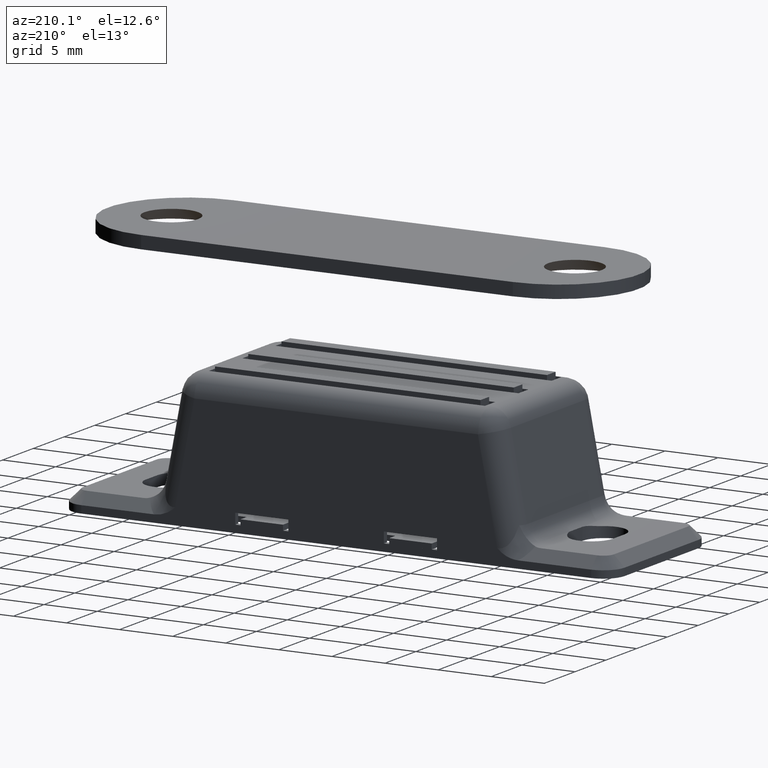
[diagram: clean part render]
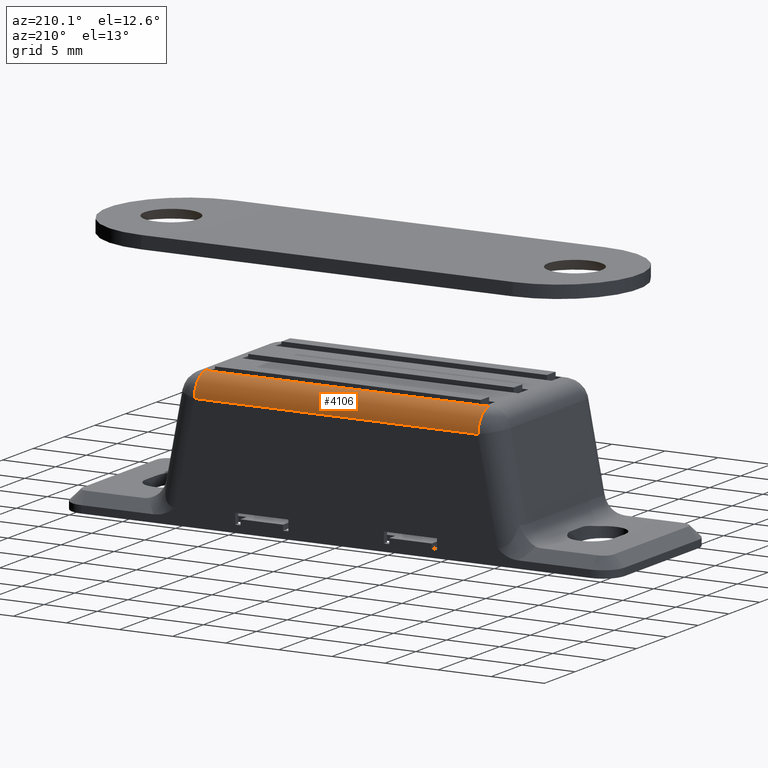
[diagram: same view with one face highlighted and labeled with its STEP entity id]
A machine part, auxiliary view. The second image highlights one B-rep face of the part: STEP entity #4106.
In plain terms, the highlighted cylindrical surface (edge-blend (fillet) strip) has radius 2 mm, axis along (1, 0, 0).
Its self-contained STEP definition (entity closure, byte-faithful):
#184=CYLINDRICAL_SURFACE('',#4404,2.);
#209=CIRCLE('',#4275,2.);
#211=CIRCLE('',#4279,2.);
#259=CIRCLE('',#4402,2.);
#261=CIRCLE('',#4405,2.);
#396=FACE_OUTER_BOUND('',#633,.T.);
#633=EDGE_LOOP('',(#3114,#3115,#3116,#3117,#3118,#3119,#3120,#3121));
#845=LINE('',#5864,#1285);
#880=LINE('',#5953,#1320);
#885=LINE('',#5961,#1325);
#957=LINE('',#6578,#1397);
#1285=VECTOR('',#4705,26.);
#1320=VECTOR('',#4784,0.351327228364999);
#1325=VECTOR('',#4789,0.351327228364999);
#1397=VECTOR('',#5073,26.70265445673);
#1706=VERTEX_POINT('',#5853);
#1707=VERTEX_POINT('',#5854);
#1710=VERTEX_POINT('',#5863);
#1712=VERTEX_POINT('',#5869);
#1742=VERTEX_POINT('',#5952);
#1745=VERTEX_POINT('',#5959);
#1833=VERTEX_POINT('',#6572);
#1834=VERTEX_POINT('',#6576);
#2110=EDGE_CURVE('',#1706,#1707,#209,.T.);
#2115=EDGE_CURVE('',#1707,#1710,#845,.T.);
#2118=EDGE_CURVE('',#1710,#1712,#211,.T.);
#2160=EDGE_CURVE('',#1742,#1706,#880,.T.);
#2165=EDGE_CURVE('',#1712,#1745,#885,.T.);
#2309=EDGE_CURVE('',#1742,#1833,#259,.T.);
#2311=EDGE_CURVE('',#1834,#1745,#261,.T.);
#2312=EDGE_CURVE('',#1834,#1833,#957,.T.);
#3114=ORIENTED_EDGE('',*,*,#2118,.T.);
#3115=ORIENTED_EDGE('',*,*,#2165,.T.);
#3116=ORIENTED_EDGE('',*,*,#2311,.F.);
#3117=ORIENTED_EDGE('',*,*,#2312,.T.);
#3118=ORIENTED_EDGE('',*,*,#2309,.F.);
#3119=ORIENTED_EDGE('',*,*,#2160,.T.);
#3120=ORIENTED_EDGE('',*,*,#2110,.T.);
#3121=ORIENTED_EDGE('',*,*,#2115,.T.);
#4106=ADVANCED_FACE('',(#396),#184,.T.);
#4275=AXIS2_PLACEMENT_3D('',#5855,#4696,#4697);
#4279=AXIS2_PLACEMENT_3D('',#5870,#4710,#4711);
#4402=AXIS2_PLACEMENT_3D('',#6573,#5065,#5066);
#4404=AXIS2_PLACEMENT_3D('',#6575,#5069,#5070);
#4405=AXIS2_PLACEMENT_3D('',#6577,#5071,#5072);
#4696=DIRECTION('center_axis',(-1.,0.,0.));
#4697=DIRECTION('ref_axis',(0.,0.707106781186548,0.707106781186547));
#4705=DIRECTION('',(1.,0.,0.));
#4710=DIRECTION('center_axis',(1.,0.,0.));
#4711=DIRECTION('ref_axis',(0.,0.707106781186548,0.707106781186547));
#4784=DIRECTION('',(1.,0.,0.));
#4789=DIRECTION('',(1.,0.,0.));
#5065=DIRECTION('center_axis',(-1.,0.,0.));
#5066=DIRECTION('ref_axis',(0.,0.707106781186548,0.707106781186547));
#5069=DIRECTION('center_axis',(1.,0.,0.));
#5070=DIRECTION('ref_axis',(0.,0.707106781186548,0.707106781186547));
#5071=DIRECTION('center_axis',(1.,0.,0.));
#5072=DIRECTION('ref_axis',(0.,0.707106781186548,0.707106781186547));
#5073=DIRECTION('',(-1.,0.,0.));
#5853=CARTESIAN_POINT('',(-13.,6.,12.8));
#5854=CARTESIAN_POINT('',(-13.,6.2,12.7899748742132));
#5855=CARTESIAN_POINT('Origin',(-13.,6.,10.8));
#5863=CARTESIAN_POINT('',(13.,6.2,12.7899748742132));
#5864=CARTESIAN_POINT('',(-7.5,6.2,12.7899748742132));
#5869=CARTESIAN_POINT('',(13.,6.,12.8));
#5870=CARTESIAN_POINT('Origin',(13.,6.,10.8));
#5952=CARTESIAN_POINT('',(-13.351327228365,6.,12.8));
#5953=CARTESIAN_POINT('',(-7.5,6.,12.8));
#5959=CARTESIAN_POINT('',(13.351327228365,6.,12.8));
#5961=CARTESIAN_POINT('',(-7.5,6.,12.8));
#6572=CARTESIAN_POINT('',(-13.351327228365,8.,10.8));
#6573=CARTESIAN_POINT('Origin',(-13.351327228365,6.,10.8));
#6575=CARTESIAN_POINT('Origin',(-7.5,6.,10.8));
#6576=CARTESIAN_POINT('',(13.351327228365,8.,10.8));
#6577=CARTESIAN_POINT('Origin',(13.351327228365,6.,10.8));
#6578=CARTESIAN_POINT('',(-7.5,8.,10.8));